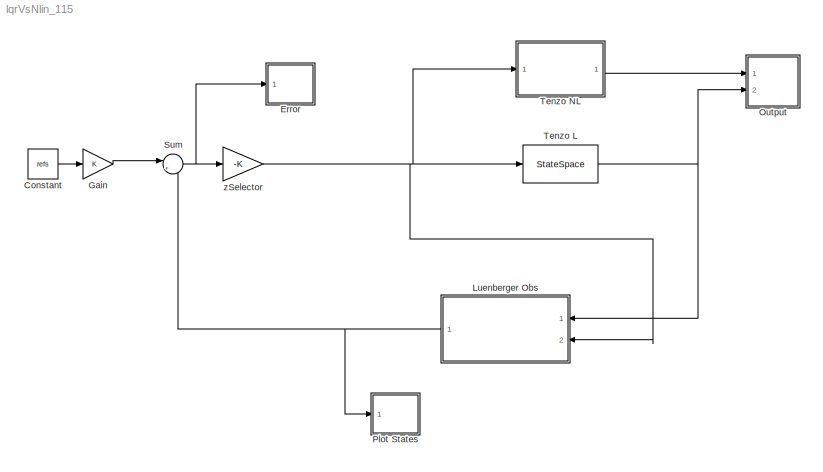
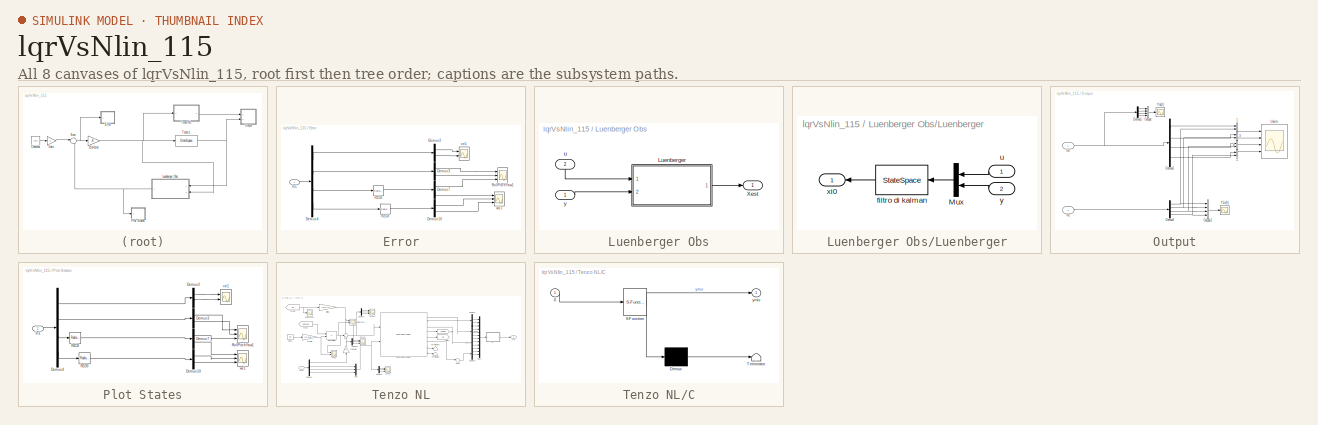
[diagram: thumbnail index - all 8 canvases of the model, root first then tree order]
MODEL lqrVsNlin_115
KIND model
BLOCK [Constant] Constant
  SID = 32
  Value = refs
BLOCK [SubSystem] Error
  FunctionWithSeparateData = off
  MaskHideContents = off
  MinAlgLoopOccurrences = off
  Opaque = off
  Ports = [1]
  PropExecContextOutsideSubsystem = off
  RTWSystemCode = Auto
  RequestExecContextInheritance = off
  SID = 34
BLOCK [Demux] Error/Demux10
  DisplayOption = bar
  Outputs = 2
  Ports = [1, 2]
  SID = 36
BLOCK [Demux] Error/Demux2
  DisplayOption = bar
  Outputs = 2
  Ports = [1, 2]
  SID = 37
BLOCK [Demux] Error/Demux3
  DisplayOption = bar
  Outputs = 2
  Ports = [1, 2]
  SID = 38
BLOCK [Demux] Error/Demux4
  DisplayOption = bar
  Ports = [1, 4]
  SID = 39
BLOCK [Demux] Error/Demux7
  DisplayOption = bar
  Outputs = 2
  Ports = [1, 2]
  SID = 40
BLOCK [Inport] Error/In1
  IconDisplay = Port number
  SID = 35
BLOCK [Reference] Error/R2D2  REF=simulink_extras/Transformations/Radians\nto Degrees
  Ports = [1, 1]
  SID = 41
  SourceBlock = simulink_extras/Transformations/Radians\nto Degrees
  SourceType = RadiansToDegrees
BLOCK [Reference] Error/R2D3  REF=simulink_extras/Transformations/Radians\nto Degrees
  Ports = [1, 1]
  SID = 42
  SourceBlock = simulink_extras/Transformations/Radians\nto Degrees
  SourceType = RadiansToDegrees
BLOCK [Scope] Error/RollPitchYaw1
  DataFormat = StructureWithTime
  Floating = off
  NumInputPorts = 3
  Ports = [3]
  SID = 43
  SampleTime = 0
  SaveName = ScopeData21
  ShowLegends = off
  YMax = 5~5~5
  YMin = -5~-5~-5
  ZoomMode = yonly
BLOCK [Scope] Error/wx1
  DataFormat = StructureWithTime
  Floating = off
  NumInputPorts = 3
  Ports = [3]
  SID = 44
  SampleTime = 0
  SaveName = ScopeData24
  ShowLegends = off
  TimeRange = 15
  YMax = 5~5~5
  YMin = -5~-5~-5
BLOCK [Scope] Error/xe1
  DataFormat = StructureWithTime
  Floating = off
  LimitDataPoints = off
  NumInputPorts = 2
  Ports = [2]
  SID = 45
  SampleTime = 0
  SaveName = ScopeData25
  ShowLegends = off
  TimeRange = 3
  YMax = 3e-05~3e-05
  YMin = 1.6e-05~1.6e-05
BLOCK [Gain] Gain
  OutDataTypeStr = Inherit: Inherit via internal rule
  ParamDataTypeStr = Inherit: Inherit via internal rule
  SID = 33
  SaturateOnIntegerOverflow = off
BLOCK [SubSystem] Luenberger Obs
  FunctionWithSeparateData = off
  MaskHideContents = off
  MinAlgLoopOccurrences = off
  Opaque = off
  Ports = [2, 1]
  PropExecContextOutsideSubsystem = off
  RTWSystemCode = Auto
  RequestExecContextInheritance = off
  SID = 3
BLOCK [SubSystem] Luenberger Obs/Luenberger
  FunctionWithSeparateData = off
  MaskHideContents = off
  MinAlgLoopOccurrences = off
  Opaque = off
  Ports = [2, 1]
  PropExecContextOutsideSubsystem = off
  RTWSystemCode = Auto
  RequestExecContextInheritance = off
  SID = 6
BLOCK [Mux] Luenberger Obs/Luenberger/Mux
  DisplayOption = bar
  Inputs = [4 4]
  Ports = [2, 1]
  SID = 9
BLOCK [StateSpace] Luenberger Obs/Luenberger/filtro di kalman
  A = Aoss
  B = Boss
  C = Coss
  D = Doss
  SID = 10
  X0 = [0 0 0 0 0 0 0 0]
BLOCK [Inport] Luenberger Obs/Luenberger/u
  IconDisplay = Port number
  SID = 7
BLOCK [Outport] Luenberger Obs/Luenberger/xi0
  IconDisplay = Port number
  SID = 11
BLOCK [Inport] Luenberger Obs/Luenberger/y
  IconDisplay = Port number
  Port = 2
  SID = 8
BLOCK [Outport] Luenberger Obs/Xest
  IconDisplay = Port number
  SID = 12
BLOCK [Inport] Luenberger Obs/u
  IconDisplay = Port number
  Port = 2
  SID = 5
BLOCK [Inport] Luenberger Obs/y
  IconDisplay = Port number
  SID = 4
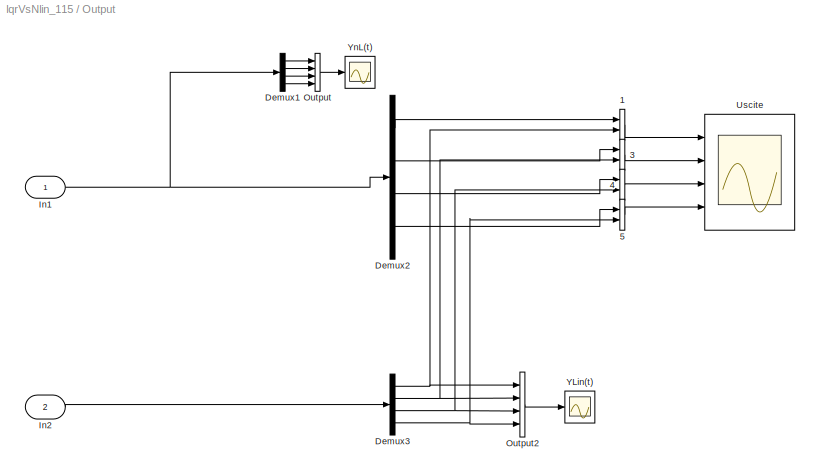
BLOCK [SubSystem] Output
  FunctionWithSeparateData = off
  MaskHideContents = off
  MinAlgLoopOccurrences = off
  Opaque = off
  Ports = [2]
  PropExecContextOutsideSubsystem = off
  RTWSystemCode = Auto
  RequestExecContextInheritance = off
  SID = 46
BLOCK [Concatenate] Output/1
  Ports = [2, 1]
  SID = 94
BLOCK [Concatenate] Output/3
  Ports = [2, 1]
  SID = 99
BLOCK [Concatenate] Output/4
  Ports = [2, 1]
  SID = 100
BLOCK [Concatenate] Output/5
  Ports = [2, 1]
  SID = 101
BLOCK [Demux] Output/Demux1
  DisplayOption = bar
  Ports = [1, 4]
  SID = 1
BLOCK [Demux] Output/Demux2
  DisplayOption = bar
  Ports = [1, 4]
  SID = 48
BLOCK [Demux] Output/Demux3
  DisplayOption = bar
  Ports = [1, 4]
  SID = 96
BLOCK [Inport] Output/In1
  IconDisplay = Port number
  SID = 47
BLOCK [Inport] Output/In2
  IconDisplay = Port number
  Port = 2
  SID = 92
BLOCK [Concatenate] Output/Output
  NumInputs = 4
  Ports = [4, 1]
  SID = 13
BLOCK [Concatenate] Output/Output2
  NumInputs = 4
  Ports = [4, 1]
  SID = 97
BLOCK [Scope] Output/Uscite
  DataFormat = StructureWithTime
  Floating = off
  LimitDataPoints = off
  NumInputPorts = 4
  Ports = [4]
  SID = 50
  SampleTime = 0
  ShowLegends = off
  YMax = 7000~5~5~5
  YMin = 2500~-5~-5~-5
BLOCK [Scope] Output/YLin(t)
  DataFormat = StructureWithTime
  Floating = off
  LimitDataPoints = off
  NumInputPorts = 1
  Ports = [1]
  SID = 98
  SampleTime = 0
  SaveName = ScopeData1
  ShowLegends = off
  YMax = 7000
  YMin = 2500
BLOCK [Scope] Output/YnL(t)
  DataFormat = StructureWithTime
  Floating = off
  LimitDataPoints = off
  NumInputPorts = 1
  Ports = [1]
  SID = 29
  SampleTime = 0
  SaveName = ScopeData20
  ShowLegends = off
  YMax = 7000
  YMin = 2500
BLOCK [SubSystem] Plot States
  FunctionWithSeparateData = off
  MaskHideContents = off
  MinAlgLoopOccurrences = off
  Opaque = off
  Ports = [1]
  PropExecContextOutsideSubsystem = off
  RTWSystemCode = Auto
  RequestExecContextInheritance = off
  SID = 14
BLOCK [Demux] Plot States/Demux10
  DisplayOption = bar
  Outputs = 2
  Ports = [1, 2]
  SID = 16
BLOCK [Demux] Plot States/Demux2
  DisplayOption = bar
  Outputs = 2
  Ports = [1, 2]
  SID = 17
BLOCK [Demux] Plot States/Demux3
  DisplayOption = bar
  Outputs = 2
  Ports = [1, 2]
  SID = 18
BLOCK [Demux] Plot States/Demux4
  DisplayOption = bar
  Ports = [1, 4]
  SID = 19
BLOCK [Demux] Plot States/Demux7
  DisplayOption = bar
  Outputs = 2
  Ports = [1, 2]
  SID = 20
BLOCK [Inport] Plot States/In1
  IconDisplay = Port number
  SID = 15
BLOCK [Reference] Plot States/R2D2  REF=simulink_extras/Transformations/Radians\nto Degrees
  Ports = [1, 1]
  SID = 21
  SourceBlock = simulink_extras/Transformations/Radians\nto Degrees
  SourceType = RadiansToDegrees
BLOCK [Reference] Plot States/R2D3  REF=simulink_extras/Transformations/Radians\nto Degrees
  Ports = [1, 1]
  SID = 22
  SourceBlock = simulink_extras/Transformations/Radians\nto Degrees
  SourceType = RadiansToDegrees
BLOCK [Scope] Plot States/RollPitchYaw1
  DataFormat = StructureWithTime
  Floating = off
  NumInputPorts = 3
  Ports = [3]
  SID = 23
  SampleTime = 0
  SaveName = ScopeData21
  ShowLegends = off
  YMax = 5~5~5
  YMin = -5~-5~-5
  ZoomMode = yonly
BLOCK [Scope] Plot States/wx1
  DataFormat = StructureWithTime
  Floating = off
  NumInputPorts = 3
  Ports = [3]
  SID = 24
  SampleTime = 0
  SaveName = ScopeData24
  ShowLegends = off
  TimeRange = 15
  YMax = 5~5~5
  YMin = -5~-5~-5
BLOCK [Scope] Plot States/xe1
  DataFormat = StructureWithTime
  Floating = off
  LimitDataPoints = off
  NumInputPorts = 2
  Ports = [2]
  SID = 25
  SampleTime = 0
  SaveName = ScopeData25
  ShowLegends = off
  TimeRange = 3
  YMax = 3e-05~3e-05
  YMin = 1.6e-05~1.6e-05
BLOCK [Sum] Sum
  IconShape = round
  InputSameDT = off
  Inputs = |++
  OutDataTypeStr = Inherit: Inherit via internal rule
  Ports = [2, 1]
  SID = 31
  SaturateOnIntegerOverflow = off
BLOCK [StateSpace] Tenzo L
  A = AMin
  B = BMin
  C = ClocalMin
  D = D
  SID = 26
  X0 = [20 0 45 0 180 0 0 0 ]
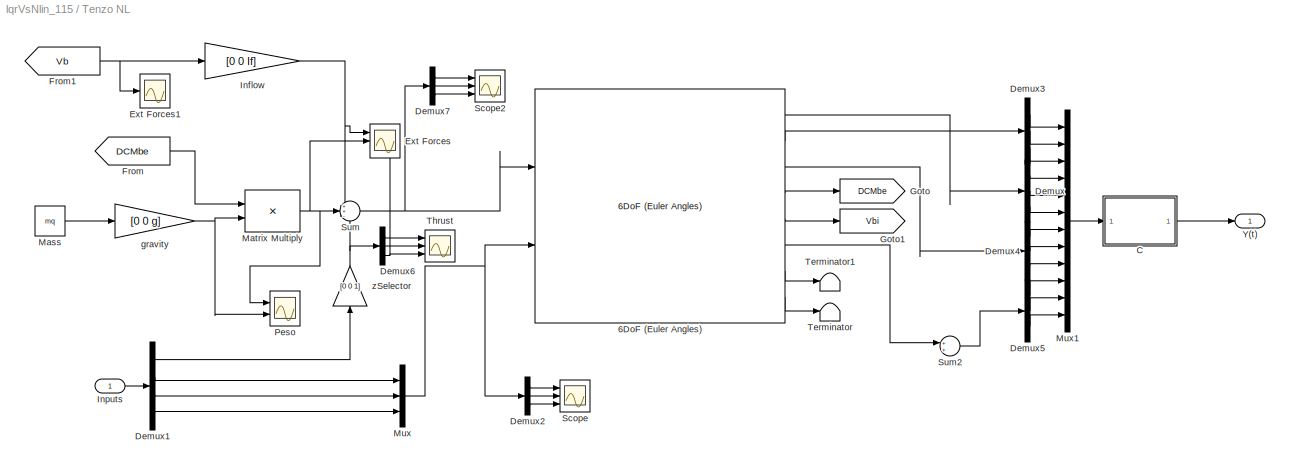
BLOCK [SubSystem] Tenzo NL
  FunctionWithSeparateData = off
  MaskHideContents = off
  MinAlgLoopOccurrences = off
  Opaque = off
  Ports = [1, 1]
  PropExecContextOutsideSubsystem = off
  RTWSystemCode = Auto
  RequestExecContextInheritance = off
  SID = 52
BLOCK [Reference] Tenzo NL/6DoF (Euler Angles)  REF=aerolib6dof2/6DoF (Euler Angles)
  Ports = [2, 8]
  SID = 54
  SourceBlock = aerolib6dof2/6DoF (Euler Angles)
  SourceType = 6DoF EoM (Body Axis)
  Vm_0 = [0 0 0]
  eul_0 = [0 0 0]
  inertia = II
  inertia_e = eye(3)
  inertia_f = 2*eye(3)
  k_quat = 1.0
  mass_0 = mq
  mass_e = 0.5
  mass_f = 2.0
  mtype = Fixed
  pm_0 = [0 0 0]
  rep = Euler Angles
  units = Metric (MKS)
  xme_0 = [0 0 0]
BLOCK [SubSystem] Tenzo NL/C
  ErrorFcn = Stateflow.Translate.translate
  FunctionWithSeparateData = off
  MaskHideContents = off
  MinAlgLoopOccurrences = off
  Opaque = off
  PermitHierarchicalResolution = ExplicitOnly
  Ports = [1, 1]
  PropExecContextOutsideSubsystem = off
  RTWSystemCode = Auto
  RequestExecContextInheritance = off
  SFBlockType = MATLAB Function
  SID = 108
  TreatAsAtomicUnit = on
BLOCK [Demux] Tenzo NL/C/ Demux 
  Outputs = 1
  Ports = [1, 1]
  SID = 108::24
BLOCK [S-Function] Tenzo NL/C/ SFunction 
  EnableBusSupport = on
  FunctionName = sf_sfun
  PortCounts = [1 2]
  Ports = [1, 2]
  SID = 108::23
  Tag = Stateflow S-Function lqrVsNlin_115 2
BLOCK [Terminator] Tenzo NL/C/ Terminator 
  SID = 108::25
BLOCK [Inport] Tenzo NL/C/X
  IconDisplay = Port number
  SID = 108::1
BLOCK [Outport] Tenzo NL/C/ymis
  IconDisplay = Port number
  SID = 108::5
BLOCK [Demux] Tenzo NL/Demux
  DisplayOption = bar
  Outputs = 3
  Ports = [1, 3]
  SID = 55
BLOCK [Demux] Tenzo NL/Demux1
  DisplayOption = bar
  Ports = [1, 4]
  SID = 56
BLOCK [Demux] Tenzo NL/Demux2
  DisplayOption = bar
  Outputs = 3
  Ports = [1, 3]
  SID = 57
BLOCK [Demux] Tenzo NL/Demux3
  DisplayOption = bar
  Outputs = 3
  Ports = [1, 3]
  SID = 58
BLOCK [Demux] Tenzo NL/Demux4
  DisplayOption = bar
  Outputs = 3
  Ports = [1, 3]
  SID = 59
BLOCK [Demux] Tenzo NL/Demux5
  DisplayOption = bar
  Outputs = 3
  Ports = [1, 3]
  SID = 60
BLOCK [Demux] Tenzo NL/Demux6
  DisplayOption = bar
  Outputs = 3
  Ports = [1, 3]
  SID = 61
BLOCK [Demux] Tenzo NL/Demux7
  DisplayOption = bar
  Outputs = 3
  Ports = [1, 3]
  SID = 62
BLOCK [Scope] Tenzo NL/Ext Forces
  DataFormat = StructureWithTime
  Floating = off
  NumInputPorts = 3
  Ports = [3]
  SID = 63
  SampleInput = on
  SampleTime = 0.01
  SaveName = ScopeData5
  ShowLegends = off
  TimeRange = 30
  YMax = 0~2~5
  YMin = -950000~-8~-5
  ZoomMode = yonly
BLOCK [Scope] Tenzo NL/Ext Forces1
  DataFormat = StructureWithTime
  Floating = off
  NumInputPorts = 1
  Ports = [1]
  SID = 64
  SampleInput = on
  SampleTime = 0.01
  SaveName = ScopeData27
  ShowLegends = off
  TimeRange = 30
  YMax = 0
  YMin = -950000
  ZoomMode = yonly
BLOCK [From] Tenzo NL/From
  GotoTag = DCMbe
  SID = 65
BLOCK [From] Tenzo NL/From1
  GotoTag = Vb
  SID = 66
BLOCK [Goto] Tenzo NL/Goto
  GotoTag = DCMbe
  SID = 67
BLOCK [Goto] Tenzo NL/Goto1
  GotoTag = Vbi
  SID = 68
BLOCK [Gain] Tenzo NL/Inflow
  Gain = [0 0 If]
  OutDataTypeStr = Inherit: Inherit via internal rule
  ParamDataTypeStr = Inherit: Inherit via internal rule
  SID = 69
  SaturateOnIntegerOverflow = off
BLOCK [Inport] Tenzo NL/Inputs
  IconDisplay = Port number
  SID = 53
BLOCK [Constant] Tenzo NL/Mass
  SID = 70
  Value = mq
BLOCK [Product] Tenzo NL/Matrix Multiply
  InputSameDT = off
  Multiplication = Matrix(*)
  OutDataTypeStr = Inherit: Inherit via internal rule
  Ports = [2, 1]
  RndMeth = Floor
  SID = 71
  SaturateOnIntegerOverflow = off
BLOCK [Mux] Tenzo NL/Mux
  DisplayOption = bar
  Inputs = 3
  Ports = [3, 1]
  SID = 72
BLOCK [Mux] Tenzo NL/Mux1
  DisplayOption = bar
  Inputs = 12
  Ports = [12, 1]
  SID = 73
BLOCK [Scope] Tenzo NL/Peso
  DataFormat = StructureWithTime
  Floating = off
  NumInputPorts = 2
  Ports = [2]
  SID = 74
  SampleInput = on
  SampleTime = 0.01
  SaveName = ScopeData8
  ShowLegends = off
  TimeRange = 30
  YMax = 2~8.5
  YMin = -8~0
BLOCK [Scope] Tenzo NL/Scope
  DataFormat = StructureWithTime
  Floating = off
  NumInputPorts = 3
  Ports = [3]
  SID = 75
  SampleTime = 0
  SaveName = ScopeData4
  ShowLegends = off
  YMax = 28792.6~1~-607.435
  YMin = 26050.4~-1~-671.375
  ZoomMode = yonly
BLOCK [Scope] Tenzo NL/Scope2
  DataFormat = StructureWithTime
  Floating = off
  NumInputPorts = 3
  Ports = [3]
  SID = 76
  SampleTime = 0
  SaveName = ScopeData23
  ShowLegends = off
  YMax = 1~1~-0.4
  YMin = -1~-1~-2.3
  ZoomMode = yonly
BLOCK [Sum] Tenzo NL/Sum
  IconShape = round
  InputSameDT = off
  Inputs = ++-
  OutDataTypeStr = Inherit: Inherit via internal rule
  Ports = [3, 1]
  SID = 77
  SaturateOnIntegerOverflow = off
BLOCK [Sum] Tenzo NL/Sum2
  IconShape = round
  InputSameDT = off
  OutDataTypeStr = Inherit: Inherit via internal rule
  Ports = [2, 1]
  SID = 78
  SaturateOnIntegerOverflow = off
BLOCK [Terminator] Tenzo NL/Terminator
  SID = 79
BLOCK [Terminator] Tenzo NL/Terminator1
  SID = 80
BLOCK [Scope] Tenzo NL/Thrust
  DataFormat = StructureWithTime
  Floating = off
  NumInputPorts = 3
  Ports = [3]
  SID = 81
  SampleTime = 0
  SaveName = ScopeData7
  ShowLegends = off
  YMax = 1~1~-0.4
  YMin = -1~-1~-2.3
  ZoomMode = yonly
BLOCK [Outport] Tenzo NL/Y(t)
  IconDisplay = Port number
  SID = 84
BLOCK [Gain] Tenzo NL/gravity
  Gain = [0 0 g]
  OutDataTypeStr = Inherit: Inherit via internal rule
  ParamDataTypeStr = Inherit: Inherit via internal rule
  SID = 82
  SaturateOnIntegerOverflow = off
BLOCK [Gain] Tenzo NL/zSelector
  Gain = [0 0 1]
  OutDataTypeStr = Inherit: Inherit via internal rule
  ParamDataTypeStr = Inherit: Inherit via internal rule
  SID = 83
  SaturateOnIntegerOverflow = off
BLOCK [Gain] zSelector
  Gain = -K
  Multiplication = Matrix(K*u)
  OutDataTypeStr = Inherit: Inherit via internal rule
  ParamDataTypeStr = Inherit: Inherit via internal rule
  SID = 30
  SaturateOnIntegerOverflow = off
LINE Constant:1 -> Gain:1
LINE Error/Demux10:1 -> Error/wx1:2
LINE Error/Demux10:2 -> Error/wx1:3
LINE Error/Demux2:1 -> Error/xe1:1
LINE Error/Demux2:2 -> Error/xe1:2
LINE Error/Demux3:1 -> Error/RollPitchYaw1:1
LINE Error/Demux3:2 -> Error/RollPitchYaw1:2
LINE Error/Demux4:1 -> Error/Demux2:1
LINE Error/Demux4:2 -> Error/Demux3:1
LINE Error/Demux4:3 -> Error/R2D2:1
LINE Error/Demux4:4 -> Error/R2D3:1
LINE Error/Demux7:1 -> Error/RollPitchYaw1:3
LINE Error/Demux7:2 -> Error/wx1:1
LINE Error/In1:1 -> Error/Demux4:1
LINE Error/R2D2:1 -> Error/Demux7:1
LINE Error/R2D3:1 -> Error/Demux10:1
LINE Gain:1 -> Sum:1
LINE Luenberger Obs/Luenberger/Mux:1 -> Luenberger Obs/Luenberger/filtro di kalman:1
LINE Luenberger Obs/Luenberger/filtro di kalman:1 -> Luenberger Obs/Luenberger/xi0:1
LINE Luenberger Obs/Luenberger/u:1 -> Luenberger Obs/Luenberger/Mux:1
LINE Luenberger Obs/Luenberger/y:1 -> Luenberger Obs/Luenberger/Mux:2
LINE Luenberger Obs/Luenberger:1 -> Luenberger Obs/Xest:1
LINE Luenberger Obs/u:1 -> Luenberger Obs/Luenberger:1
LINE Luenberger Obs/y:1 -> Luenberger Obs/Luenberger:2
NET Luenberger Obs:1 -> Plot States:1, Sum:2
LINE Output/1:1 -> Output/Uscite:1
LINE Output/3:1 -> Output/Uscite:2
LINE Output/4:1 -> Output/Uscite:3
LINE Output/5:1 -> Output/Uscite:4
LINE Output/Demux1:1 -> Output/Output:1
LINE Output/Demux1:2 -> Output/Output:2
LINE Output/Demux1:3 -> Output/Output:3
LINE Output/Demux1:4 -> Output/Output:4
LINE Output/Demux2:1 -> Output/1:1
LINE Output/Demux2:2 -> Output/3:1
LINE Output/Demux2:3 -> Output/4:1
LINE Output/Demux2:4 -> Output/5:1
NET Output/Demux3:1 -> Output/1:2, Output/Output2:1
NET Output/Demux3:2 -> Output/3:2, Output/Output2:2
NET Output/Demux3:3 -> Output/4:2, Output/Output2:3
NET Output/Demux3:4 -> Output/5:2, Output/Output2:4
NET Output/In1:1 -> Output/Demux1:1, Output/Demux2:1
LINE Output/In2:1 -> Output/Demux3:1
LINE Output/Output2:1 -> Output/YLin(t):1
LINE Output/Output:1 -> Output/YnL(t):1
LINE Plot States/Demux10:1 -> Plot States/wx1:2
LINE Plot States/Demux10:2 -> Plot States/wx1:3
LINE Plot States/Demux2:1 -> Plot States/xe1:1
LINE Plot States/Demux2:2 -> Plot States/xe1:2
LINE Plot States/Demux3:1 -> Plot States/RollPitchYaw1:1
LINE Plot States/Demux3:2 -> Plot States/RollPitchYaw1:2
LINE Plot States/Demux4:1 -> Plot States/Demux2:1
LINE Plot States/Demux4:2 -> Plot States/Demux3:1
LINE Plot States/Demux4:3 -> Plot States/R2D2:1
LINE Plot States/Demux4:4 -> Plot States/R2D3:1
LINE Plot States/Demux7:1 -> Plot States/RollPitchYaw1:3
LINE Plot States/Demux7:2 -> Plot States/wx1:1
LINE Plot States/In1:1 -> Plot States/Demux4:1
LINE Plot States/R2D2:1 -> Plot States/Demux7:1
LINE Plot States/R2D3:1 -> Plot States/Demux10:1
NET Sum:1 -> Error:1, zSelector:1
NET Tenzo L:1 -> Luenberger Obs:1, Output:2
LINE Tenzo NL/6DoF (Euler Angles):1 -> Tenzo NL/Demux:1
LINE Tenzo NL/6DoF (Euler Angles):2 -> Tenzo NL/Demux3:1
LINE Tenzo NL/6DoF (Euler Angles):3 -> Tenzo NL/Demux4:1
LINE Tenzo NL/6DoF (Euler Angles):4 -> Tenzo NL/Goto:1
LINE Tenzo NL/6DoF (Euler Angles):5 -> Tenzo NL/Goto1:1
LINE Tenzo NL/6DoF (Euler Angles):6 -> Tenzo NL/Sum2:1
LINE Tenzo NL/6DoF (Euler Angles):7 -> Tenzo NL/Terminator1:1
LINE Tenzo NL/6DoF (Euler Angles):8 -> Tenzo NL/Terminator:1
LINE Tenzo NL/C/ Demux :1 -> Tenzo NL/C/ Terminator :1
LINE Tenzo NL/C/ SFunction :1 -> Tenzo NL/C/ Demux :1
LINE Tenzo NL/C/ SFunction :2 -> Tenzo NL/C/ymis:1
LINE Tenzo NL/C/X:1 -> Tenzo NL/C/ SFunction :1
LINE Tenzo NL/C:1 -> Tenzo NL/Y(t):1
LINE Tenzo NL/Demux1:1 -> Tenzo NL/zSelector:1
LINE Tenzo NL/Demux1:2 -> Tenzo NL/Mux:1
LINE Tenzo NL/Demux1:3 -> Tenzo NL/Mux:2
LINE Tenzo NL/Demux1:4 -> Tenzo NL/Mux:3
LINE Tenzo NL/Demux2:1 -> Tenzo NL/Scope:1
LINE Tenzo NL/Demux2:2 -> Tenzo NL/Scope:2
LINE Tenzo NL/Demux2:3 -> Tenzo NL/Scope:3
LINE Tenzo NL/Demux3:1 -> Tenzo NL/Mux1:1
LINE Tenzo NL/Demux3:2 -> Tenzo NL/Mux1:2
LINE Tenzo NL/Demux3:3 -> Tenzo NL/Mux1:3
LINE Tenzo NL/Demux4:1 -> Tenzo NL/Mux1:7
LINE Tenzo NL/Demux4:2 -> Tenzo NL/Mux1:8
LINE Tenzo NL/Demux4:3 -> Tenzo NL/Mux1:9
LINE Tenzo NL/Demux5:1 -> Tenzo NL/Mux1:10
LINE Tenzo NL/Demux5:2 -> Tenzo NL/Mux1:11
LINE Tenzo NL/Demux5:3 -> Tenzo NL/Mux1:12
LINE Tenzo NL/Demux6:1 -> Tenzo NL/Thrust:1
LINE Tenzo NL/Demux6:2 -> Tenzo NL/Thrust:2
NET Tenzo NL/Demux6:3 -> Tenzo NL/Ext Forces:3, Tenzo NL/Thrust:3
LINE Tenzo NL/Demux7:1 -> Tenzo NL/Scope2:1
LINE Tenzo NL/Demux7:2 -> Tenzo NL/Scope2:2
LINE Tenzo NL/Demux7:3 -> Tenzo NL/Scope2:3
LINE Tenzo NL/Demux:1 -> Tenzo NL/Mux1:4
LINE Tenzo NL/Demux:2 -> Tenzo NL/Mux1:5
LINE Tenzo NL/Demux:3 -> Tenzo NL/Mux1:6
NET Tenzo NL/From1:1 -> Tenzo NL/Ext Forces1:1, Tenzo NL/Inflow:1
LINE Tenzo NL/From:1 -> Tenzo NL/Matrix Multiply:1
NET Tenzo NL/Inflow:1 -> Tenzo NL/Ext Forces:1, Tenzo NL/Sum:1
LINE Tenzo NL/Inputs:1 -> Tenzo NL/Demux1:1
LINE Tenzo NL/Mass:1 -> Tenzo NL/gravity:1
NET Tenzo NL/Matrix Multiply:1 -> Tenzo NL/Ext Forces:2, Tenzo NL/Peso:1, Tenzo NL/Sum:2
LINE Tenzo NL/Mux1:1 -> Tenzo NL/C:1
NET Tenzo NL/Mux:1 -> Tenzo NL/6DoF (Euler Angles):2, Tenzo NL/Demux2:1
LINE Tenzo NL/Sum2:1 -> Tenzo NL/Demux5:1
NET Tenzo NL/Sum:1 -> Tenzo NL/6DoF (Euler Angles):1, Tenzo NL/Demux7:1
NET Tenzo NL/gravity:1 -> Tenzo NL/Matrix Multiply:2, Tenzo NL/Peso:2
NET Tenzo NL/zSelector:1 -> Tenzo NL/Demux6:1, Tenzo NL/Sum:3
LINE Tenzo NL:1 -> Output:1
NET zSelector:1 -> Luenberger Obs:2, Tenzo L:1, Tenzo NL:1
note: NET lines group one-source signal fan-out (src -> all destinations, sorted); 1:1 wires keep LINE
CHART Tenzo NL/C states=1 transitions=1
  STATE_LABEL 'eML_blk_kernel()'
